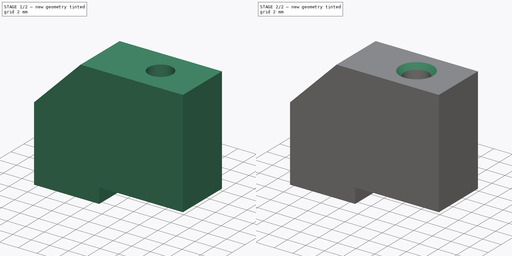
[diagram: build sequence overview — one tinted view per stage of 2, left to right]
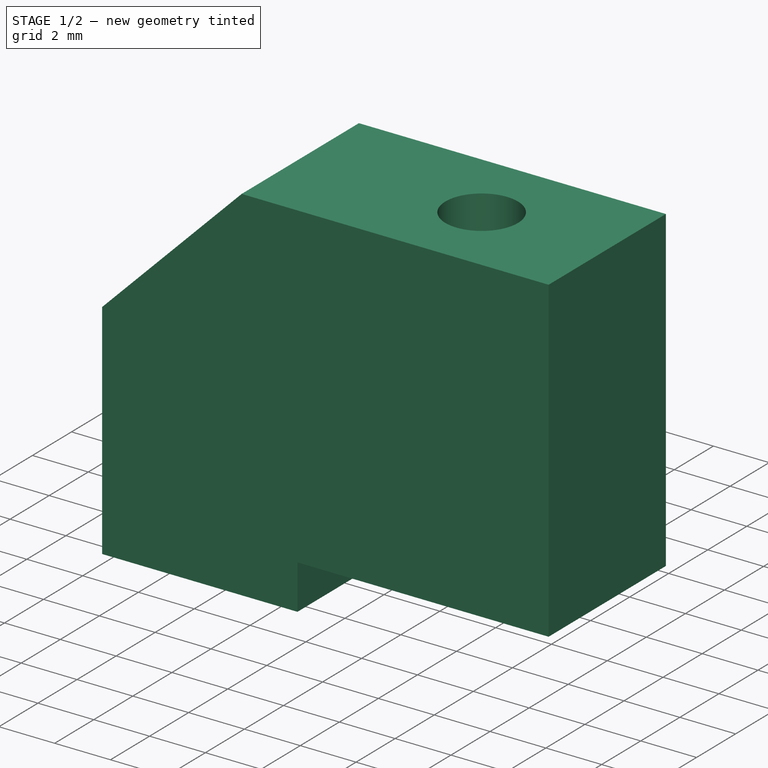
[diagram: stage 1 of 2 — iso view after this stage's code; geometry added in this stage tinted green]
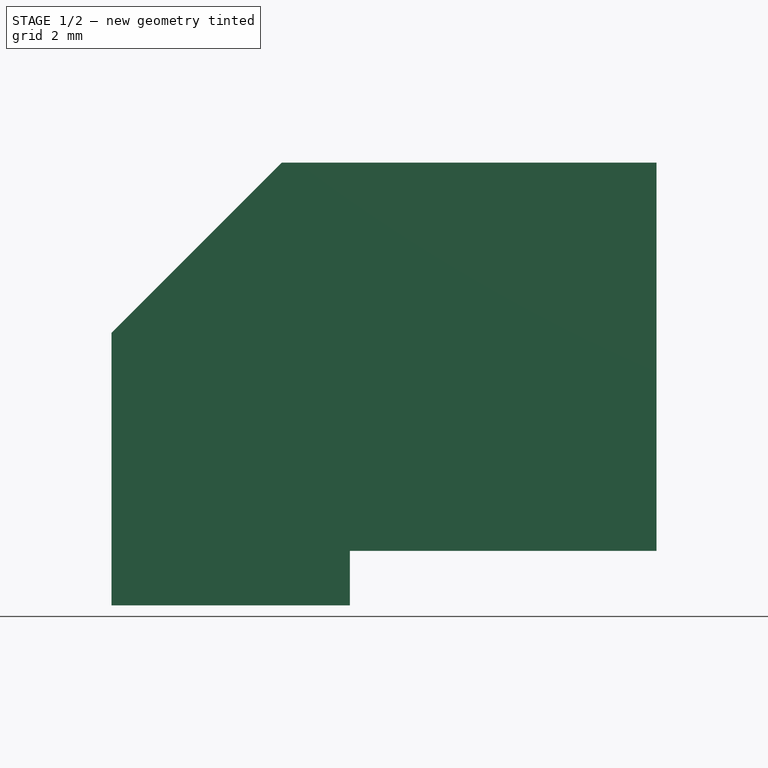
[diagram: stage 1 of 2 — front view after this stage's code; geometry added in this stage tinted green]
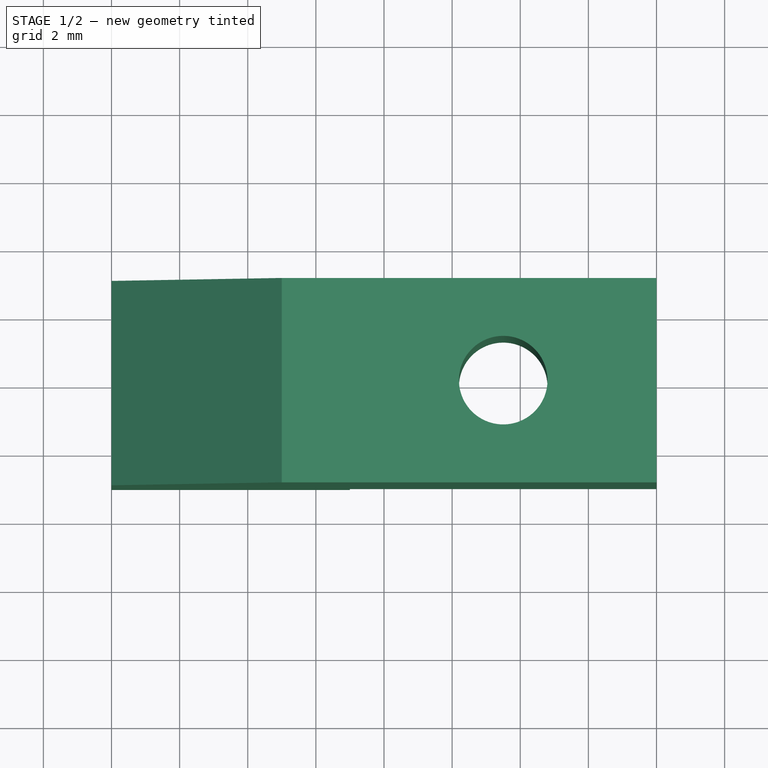
[diagram: stage 1 of 2 — top view after this stage's code; geometry added in this stage tinted green]
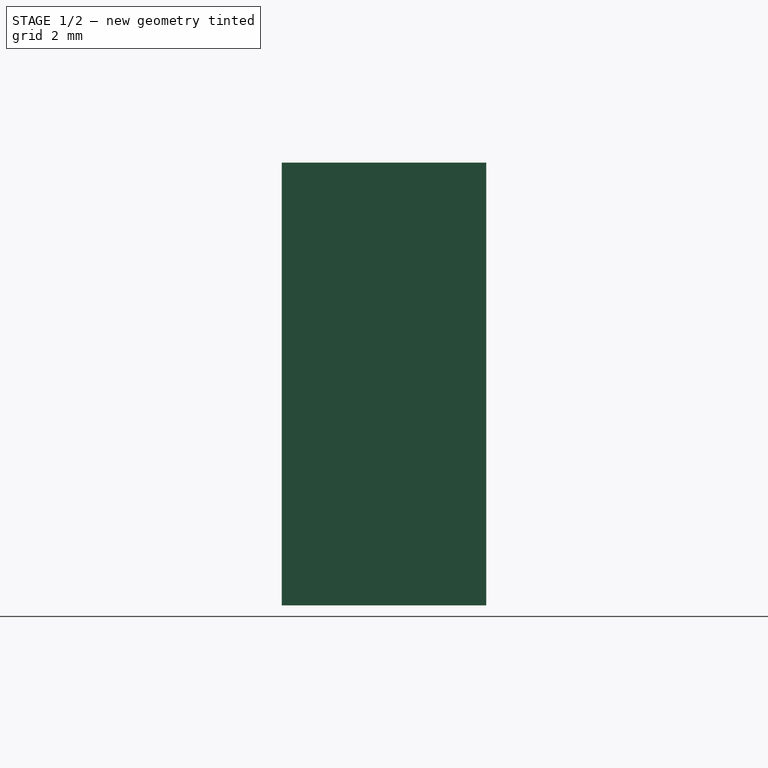
[diagram: stage 1 of 2 — right view after this stage's code; geometry added in this stage tinted green]
FCSTD DOCUMENT  (FreeCAD 0.16R6712 (Git))
Label: PCB-MB-01
License: All rights reserved
LicenseURL: http://en.wikipedia.org/wiki/All_rights_reserved
objects: Sketcher::SketchObject×3, PartDesign::Pocket×2, PartDesign::Pad×1, PartDesign::Chamfer×1
note: 10 computed .brp shape members not serialized (recipe doc carries the construction recipe); baked Part::Feature solids carry a one-line shape summary decoded from their .brp

FEATURE [Sketcher::SketchObject] Sketch
  Placement = pos=(0,0,0) rot=(-1,0,0;4.71239rad)
  sketch-geometry (11):
    g0: LineSegment [constr] StartX=8 StartY=-6.5 StartZ=0 EndX=-8 EndY=-6.5 EndZ=0
    g1: LineSegment [constr] StartX=-8 StartY=-6.5 StartZ=0 EndX=-8 EndY=6.5 EndZ=0
    g2: LineSegment [constr] StartX=-8 StartY=6.5 StartZ=0 EndX=8 EndY=6.5 EndZ=0
    g3: LineSegment [constr] StartX=8 StartY=6.5 StartZ=0 EndX=8 EndY=-6.5 EndZ=0
    g4: LineSegment StartX=-8 StartY=1.5 StartZ=0 EndX=-3 EndY=6.5 EndZ=0
    g5: LineSegment StartX=-3 StartY=6.5 StartZ=0 EndX=8 EndY=6.5 EndZ=0
    g6: LineSegment StartX=8 StartY=6.5 StartZ=0 EndX=8 EndY=-4.9 EndZ=0
    g7: LineSegment StartX=8 StartY=-4.9 StartZ=0 EndX=-1 EndY=-4.9 EndZ=0
    g8: LineSegment StartX=-1 StartY=-4.9 StartZ=0 EndX=-1 EndY=-6.5 EndZ=0
    g9: LineSegment StartX=-1 StartY=-6.5 StartZ=0 EndX=-8 EndY=-6.5 EndZ=0
    g10: LineSegment StartX=-8 StartY=-6.5 StartZ=0 EndX=-8 EndY=1.5 EndZ=0
  constraints (33):
    c: Coincident(g0,g1)
    c: Coincident(g1,g2)
    c: Coincident(g2,g3)
    c: Coincident(g3,g0)
    c: Horizontal(g0)
    c: Horizontal(g2)
    c: Vertical(g1)
    c: Vertical(g3)
    c: DistanceY(g1,g1) = 13
    c: DistanceX(g2,g2) = 16
    c: Symmetric(g0,g0,g-2)
    c: Symmetric(g2,g0,g-1)
    c: Coincident(g4,g5)
    c: Horizontal(g5)
    c: Coincident(g5,g6)
    c: Vertical(g6)
    c: Coincident(g6,g7)
    c: Horizontal(g7)
    c: Coincident(g7,g8)
    c: Vertical(g8)
    c: Coincident(g8,g9)
    c: Horizontal(g9)
    c: Coincident(g9,g10)
    c: Coincident(g10,g4)
    c: Vertical(g10)
    c: PointOnObject(g4,g1)
    c: PointOnObject(g4,g2)
    c: PointOnObject(g6,g3)
    c: PointOnObject(g8,g0)
    c: DistanceX(g7,g7) = 9
    c: Angle(g4,g1) = 0.785398
    c: DistanceX(g4,g4) = 5
    c: DistanceY(g8,g8) = 1.6
FEATURE [PartDesign::Pad] Pad  label="korpus"
  Length = 6
  Length2 = 100
  Midplane = true
  Placement = pos=(0,0,0) rot=(-1,0,0;4.71239rad)
  Sketch = -> Sketch
  Type = 0
FEATURE [Sketcher::SketchObject] Sketch001  label="gorny otwor"
  ExternalGeometry = -> [Pad]
  Placement = pos=(0,0,6.5) rot=(0,0,1;3.14159rad)
  Support = -> Pad [Face2]
  sketch-geometry (2):
    g0: Circle CenterX=-3.5 CenterY=0 CenterZ=0 NormalX=0 NormalY=0 NormalZ=1 Radius=1.3
    g1: GeomPoint [constr] X=8 Y=0 Z=0
  constraints (5):
    c: PointOnObject(g0,g-1)
    c: PointOnObject(g1,g-3)
    c: PointOnObject(g1,g-1)
    c: DistanceX(g0,g1) = 11.5
    c: Radius(g0) = 1.3
FEATURE [PartDesign::Pocket] Pocket  label="otwor gorny"
  Length = 5
  Placement = pos=(0,0,0) rot=(-1,0,0;4.71239rad)
  Sketch = -> Sketch001
  Type = 2
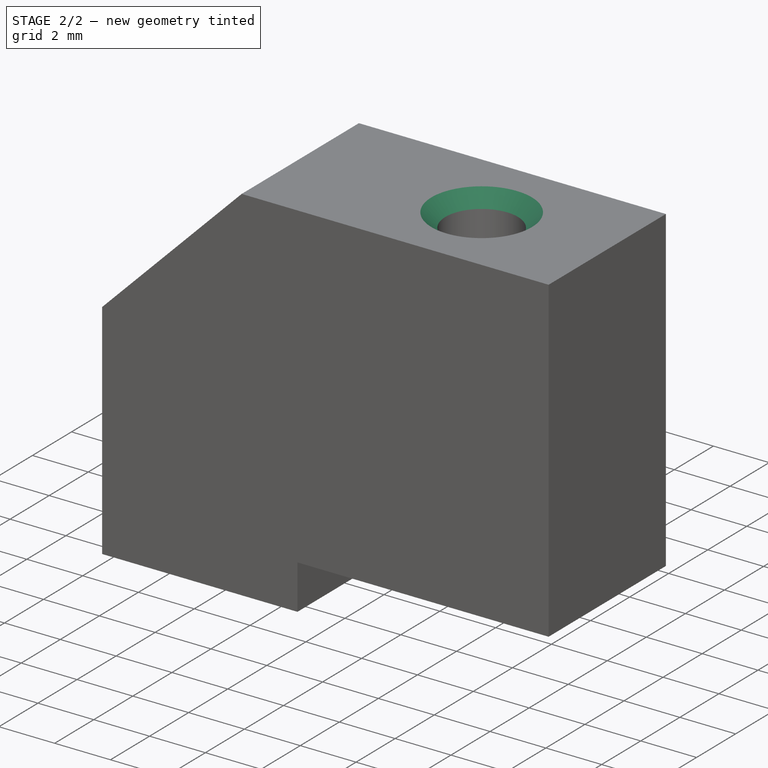
[diagram: stage 2 of 2 — iso view after this stage's code; geometry added in this stage tinted green]
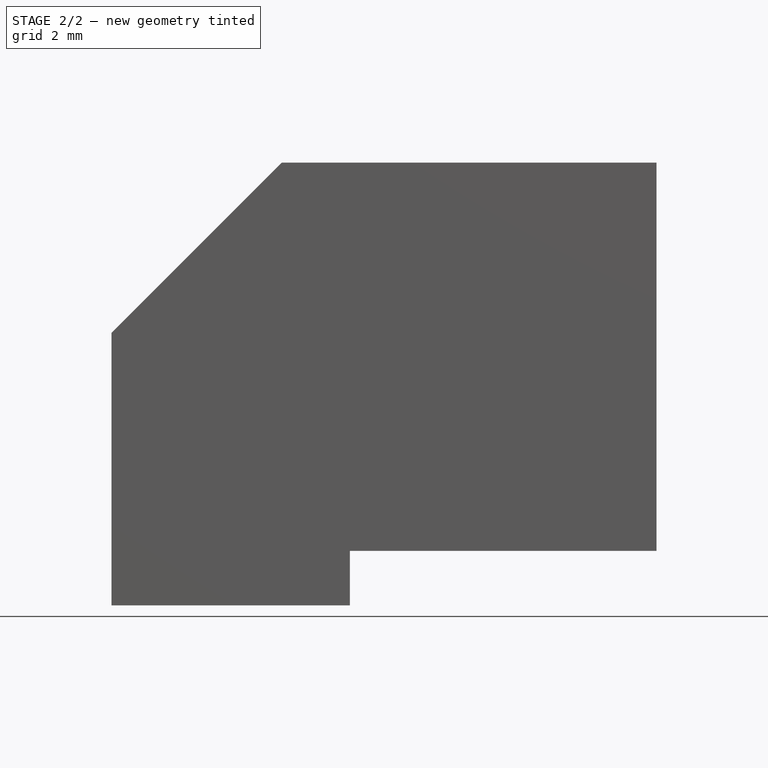
[diagram: stage 2 of 2 — front view after this stage's code; geometry added in this stage tinted green]
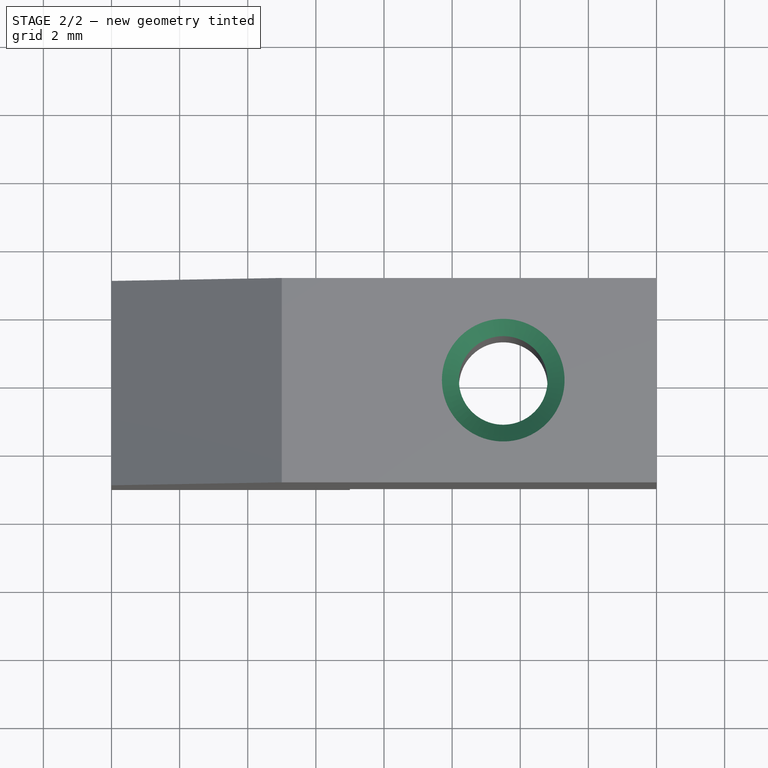
[diagram: stage 2 of 2 — top view after this stage's code; geometry added in this stage tinted green]
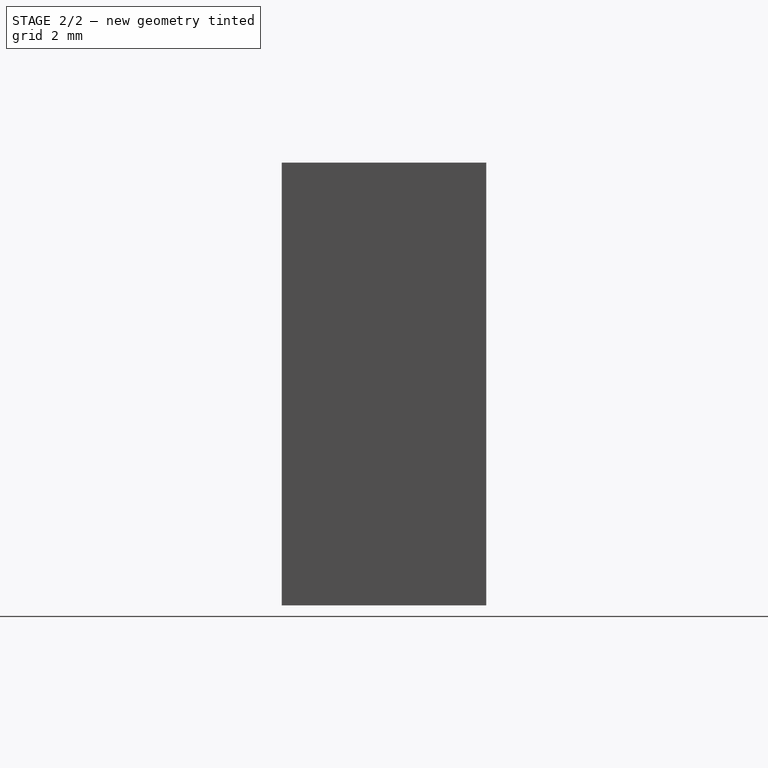
[diagram: stage 2 of 2 — right view after this stage's code; geometry added in this stage tinted green]
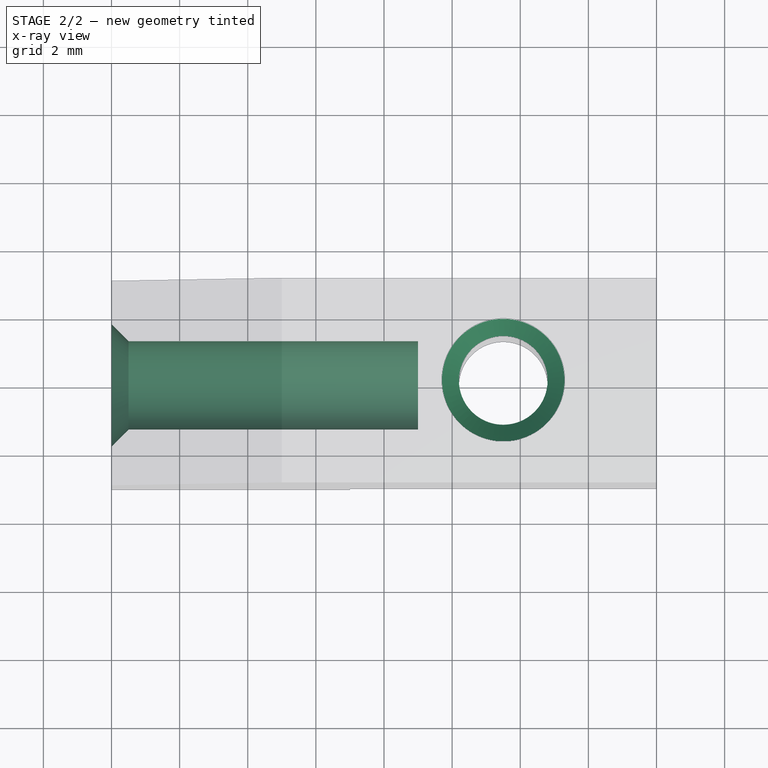
[diagram: stage 2 of 2 — x-ray composite at the top view; earlier geometry ghosted, this stage's added geometry solid]
FEATURE [Sketcher::SketchObject] Sketch002
  ExternalGeometry = -> [Pocket]
  Placement = pos=(-8,0,0) rot=(0.707107,0,-0.707107;3.14159rad)
  Support = -> Pocket [Face2]
  sketch-geometry (2):
    g0: GeomPoint [constr] X=-6.5 Y=0 Z=0
    g1: Circle CenterX=2.5 CenterY=0 CenterZ=0 NormalX=0 NormalY=0 NormalZ=1 Radius=1.3
  constraints (5):
    c: PointOnObject(g0,g-3)
    c: PointOnObject(g0,g-1)
    c: PointOnObject(g1,g-1)
    c: DistanceX(g0,g1) = 9
    c: Radius(g1) = 1.3
FEATURE [PartDesign::Pocket] Pocket001  label="otwor boczny"
  Length = 9
  Placement = pos=(0,0,0) rot=(-1,0,0;4.71239rad)
  Sketch = -> Sketch002
  Type = 0
FEATURE [PartDesign::Chamfer] Chamfer
  Base = -> Pocket001 [Edge8,Edge12,Edge26]
  Placement = pos=(0,0,0) rot=(-1,0,0;4.71239rad)
  Size = 0.5
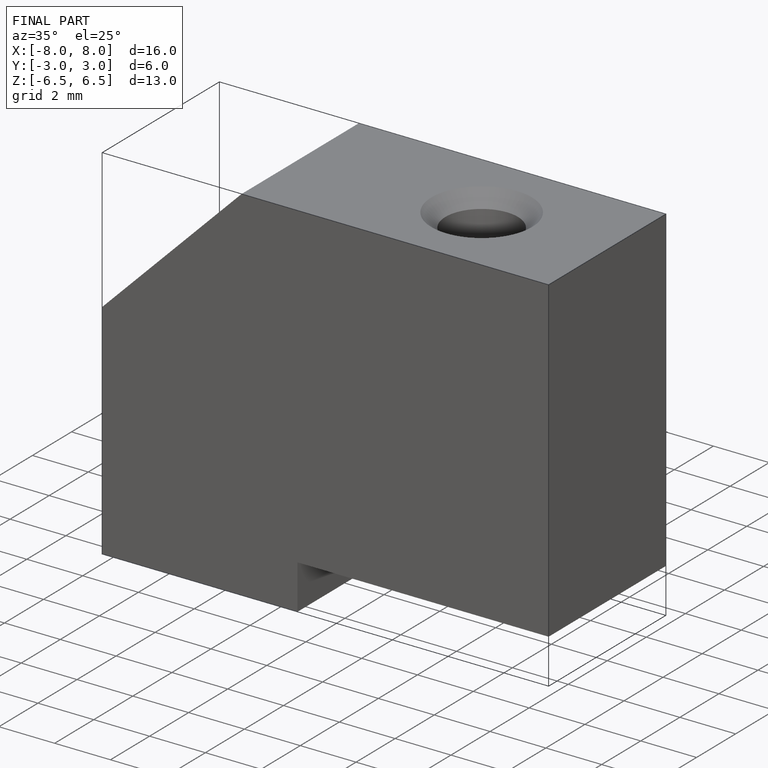
[diagram: finished part — iso view with bounding-box wireframe]
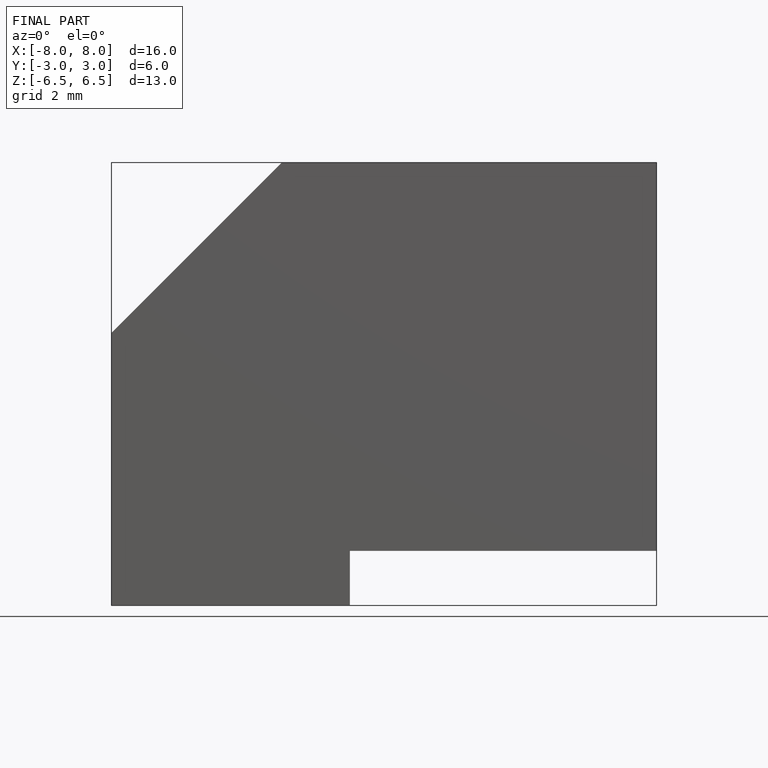
[diagram: finished part — front view with bounding-box wireframe]
